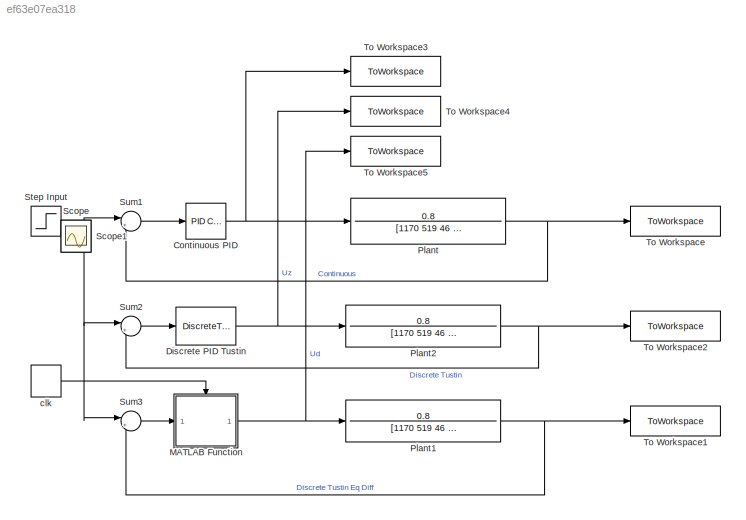
MODEL slx_ef63e07ea318
KIND model
CONFIG AbsTol = auto
CONFIG EnableMultiTasking = off
CONFIG FixedStep = auto
CONFIG MaxStep = auto
CONFIG MinStep = auto
CONFIG RelTol = 1e-6
CONFIG SampleTimeConstraint = Unconstrained
CONFIG Solver = VariableStepAuto
CONFIG SolverName = VariableStepAuto
CONFIG StartTime = 0.0
CONFIG StopTime = 120
BLOCK [Reference] Continuous PID  REF=simulink/Continuous/PID Controller
  Ports = [1, 1]
  SourceBlock = simulink/Continuous/PID Controller
  SourceProductBaseCode = SL
  SourceType = PID 1dof
BLOCK [DiscreteTransferFcn] Discrete PID Tustin
  Denominator = den_tust
  InputPortMap = u0
  Numerator = num_tust
  Ports = [1, 1]
  SampleTime = T
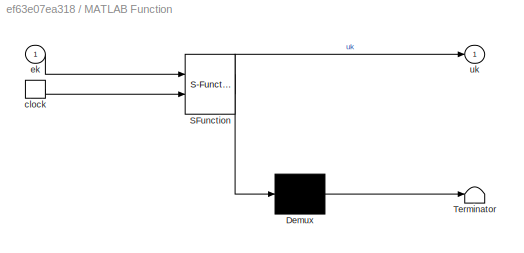
BLOCK [SubSystem] MATLAB Function
  ErrorFcn = Stateflow.Translate.translate
  PermitHierarchicalResolution = ExplicitOnly
  Ports = [1, 1, 0, 1]
  RequestExecContextInheritance = off
  SFBlockType = MATLAB Function
  TreatAsAtomicUnit = on
BLOCK [Demux] MATLAB Function/ Demux 
  Outputs = 1
  Ports = [1, 1]
BLOCK [S-Function] MATLAB Function/ SFunction 
  EnableBusSupport = on
  FunctionName = sf_sfun
  Parameters = den_tust,num_tust
  PortCounts = [2 2]
  Ports = [2, 2]
  SFcnIsStateOwnerBlock = off
  SFunctionDeploymentMode = off
  Tag = Stateflow S-Function 2
BLOCK [Terminator] MATLAB Function/ Terminator 
BLOCK [TriggerPort] MATLAB Function/clock
  Ports = [0, 1]
  ShowOutputPort = on
  StatesWhenEnabling = held
  VariantControl = (inherit)
BLOCK [Inport] MATLAB Function/ek
BLOCK [Outport] MATLAB Function/uk
BLOCK [TransferFcn] Plant
  Denominator = [1170 519 46 1]
  Numerator = 0.8
BLOCK [TransferFcn] Plant1
  Denominator = [1170 519 46 1]
  Numerator = 0.8
BLOCK [TransferFcn] Plant2
  Denominator = [1170 519 46 1]
  Numerator = 0.8
BLOCK [Scope] Scope
  Floating = off
  IOType = viewer
  NumInputPorts = 1
  Ports = []
  ScopeSpecificationString = Simulink.scopes.TimeScopeBlockCfg('CurrentConfiguration', extmgr.ConfigurationSet(extmgr.Configuration('Core','General UI',true),extmgr.Configuration('Core','Source UI',true),extmgr.Configuration('Sources','WiredSimulink',true,'DataLoggingVariableName','ScopeData1'),extmgr.Configuration('Visuals','Time Domain',true,'SerializedDisplays',{struct('MinYLimReal','-4386.37837','MaxYLimReal','4399.96508'...<+1432ch>
BLOCK [Scope] Scope1
  Floating = off
  IOType = viewer
  NumInputPorts = 1
  Ports = []
  ScopeSpecificationString = Simulink.scopes.TimeScopeBlockCfg('CurrentConfiguration', extmgr.ConfigurationSet(extmgr.Configuration('Core','General UI',true),extmgr.Configuration('Core','Source UI',true),extmgr.Configuration('Sources','WiredSimulink',true,'DataLoggingVariableName','ScopeData1'),extmgr.Configuration('Visuals','Time Domain',true,'SerializedDisplays',{struct('MinYLimReal','0.98511','MaxYLimReal','1.19357','YLabe...<+1481ch>
BLOCK [Step] Step Input
  SampleTime = 0
  Time = 0
BLOCK [Sum] Sum1
  Inputs = |+-
  Ports = [2, 1]
BLOCK [Sum] Sum2
  Inputs = |+-
  Ports = [2, 1]
BLOCK [Sum] Sum3
  Inputs = |+-
  Ports = [2, 1]
BLOCK [ToWorkspace] To Workspace
  FixptAsFi = on
  MaxDataPoints = inf
  Ports = [1]
  SampleTime = -1
  SaveFormat = Timeseries
  VariableName = y_cont
BLOCK [ToWorkspace] To Workspace1
  FixptAsFi = on
  MaxDataPoints = inf
  Ports = [1]
  SampleTime = -1
  SaveFormat = Timeseries
  VariableName = y_tust_diffeq
BLOCK [ToWorkspace] To Workspace2
  FixptAsFi = on
  MaxDataPoints = inf
  Ports = [1]
  SampleTime = -1
  SaveFormat = Timeseries
  VariableName = y_tust
BLOCK [ToWorkspace] To Workspace3
  FixptAsFi = on
  MaxDataPoints = inf
  Ports = [1]
  SampleTime = -1
  SaveFormat = Timeseries
  VariableName = u_cont
BLOCK [ToWorkspace] To Workspace4
  FixptAsFi = on
  MaxDataPoints = inf
  Ports = [1]
  SampleTime = -1
  SaveFormat = Timeseries
  VariableName = u_tust
BLOCK [ToWorkspace] To Workspace5
  FixptAsFi = on
  MaxDataPoints = inf
  Ports = [1]
  SampleTime = -1
  SaveFormat = Timeseries
  VariableName = u_tust_diffeq
BLOCK [DiscretePulseGenerator] clk
  Period = T
  PhaseDelay = 1e-9
  Ports = [0, 1]
  PulseType = Time based
  PulseWidth = 50
NET Continuous PID:1 -> Plant:1, To Workspace3:1
NET Discrete PID Tustin:1 -> Plant2:1, To Workspace4:1
NET MATLAB Function:1 -> Plant1:1, To Workspace5:1
NET Plant1:1 -> Sum3:2, To Workspace1:1
NET Plant2:1 -> Sum2:2, To Workspace2:1
NET Plant:1 -> Sum1:2, To Workspace:1
NET Step Input:1 -> Sum1:1, Sum2:1, Sum3:1
LINE Sum1:1 -> Continuous PID:1
LINE Sum2:1 -> Discrete PID Tustin:1
LINE Sum3:1 -> MATLAB Function:1
LINE clk:1 -> MATLAB Function:trigger
note: NET lines group one-source signal fan-out (src -> all destinations, sorted); 1:1 wires keep LINE
CHART MATLAB Function states=1 transitions=1
  STATE_LABEL 'eML_blk_kernel()'
  STATE_LABEL 'SCRIPT:\nfunction uk = diffeq(ek,num_tust,den_tust)\npersistent ek1      % e(k-1)\npersistent ek2      % e(k-2)\npersistent uk1      % u(k-1)\npersistent uk2      % u(k-2)\nif isempty(ek1) && isempty(ek2) && isempty(uk1) && isempty(uk2)\n    ek1 = 0; ek2 = 0;   % Initializes persistent variables\n    uk1 = 0; uk2 = 0;   % during the first execution\nend\nb2 = num_tust(1);\nb1 = num_tust(2);   % Configures co...<+402ch>'
CHART  states=0 transitions=0
